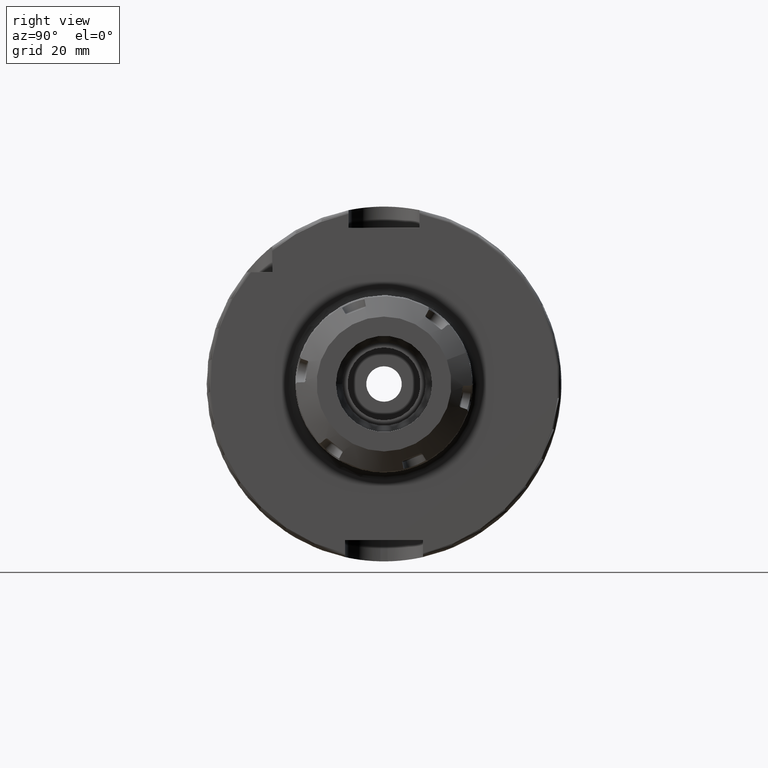
[diagram: clean part render]
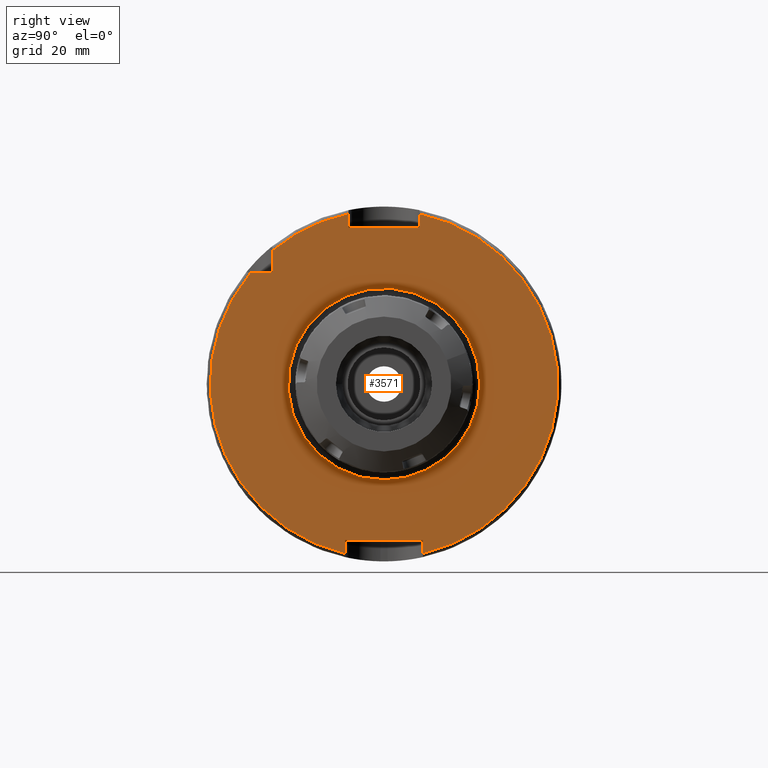
[diagram: same view with one face highlighted and labeled with its STEP entity id]
A machine part, right view. The second image highlights one B-rep face of the part: STEP entity #3571.
In plain terms, the highlighted planar face has unit normal (1, 0, 0).
Its self-contained STEP definition (entity closure, byte-faithful):
#207=FACE_BOUND('',#554,.T.);
#227=PLANE('',#3854);
#347=FACE_OUTER_BOUND('',#553,.T.);
#553=EDGE_LOOP('',(#2386,#2387,#2388,#2389,#2390,#2391,#2392,#2393,#2394,
#2395,#2396));
#554=EDGE_LOOP('',(#2397,#2398));
#778=LINE('',#5426,#969);
#779=LINE('',#5430,#970);
#780=LINE('',#5432,#971);
#781=LINE('',#5434,#972);
#782=LINE('',#5438,#973);
#783=LINE('',#5440,#974);
#784=LINE('',#5442,#975);
#785=LINE('',#5445,#976);
#969=VECTOR('',#4333,10.);
#970=VECTOR('',#4336,10.);
#971=VECTOR('',#4337,10.);
#972=VECTOR('',#4338,10.);
#973=VECTOR('',#4341,10.);
#974=VECTOR('',#4342,10.);
#975=VECTOR('',#4343,10.);
#976=VECTOR('',#4346,10.);
#1164=CIRCLE('',#3846,27.);
#1165=CIRCLE('',#3847,27.);
#1171=CIRCLE('',#3855,49.);
#1172=CIRCLE('',#3856,49.);
#1173=CIRCLE('',#3857,49.);
#1407=VERTEX_POINT('',#5407);
#1408=VERTEX_POINT('',#5409);
#1413=VERTEX_POINT('',#5424);
#1414=VERTEX_POINT('',#5425);
#1415=VERTEX_POINT('',#5427);
#1416=VERTEX_POINT('',#5429);
#1417=VERTEX_POINT('',#5431);
#1418=VERTEX_POINT('',#5433);
#1419=VERTEX_POINT('',#5435);
#1420=VERTEX_POINT('',#5437);
#1421=VERTEX_POINT('',#5439);
#1422=VERTEX_POINT('',#5441);
#1423=VERTEX_POINT('',#5443);
#1795=EDGE_CURVE('',#1407,#1408,#1164,.T.);
#1796=EDGE_CURVE('',#1408,#1407,#1165,.T.);
#1803=EDGE_CURVE('',#1413,#1414,#778,.T.);
#1804=EDGE_CURVE('',#1414,#1415,#1171,.T.);
#1805=EDGE_CURVE('',#1415,#1416,#779,.T.);
#1806=EDGE_CURVE('',#1416,#1417,#780,.T.);
#1807=EDGE_CURVE('',#1417,#1418,#781,.T.);
#1808=EDGE_CURVE('',#1418,#1419,#1172,.T.);
#1809=EDGE_CURVE('',#1419,#1420,#782,.T.);
#1810=EDGE_CURVE('',#1420,#1421,#783,.T.);
#1811=EDGE_CURVE('',#1421,#1422,#784,.T.);
#1812=EDGE_CURVE('',#1422,#1423,#1173,.T.);
#1813=EDGE_CURVE('',#1423,#1413,#785,.T.);
#2386=ORIENTED_EDGE('',*,*,#1803,.T.);
#2387=ORIENTED_EDGE('',*,*,#1804,.T.);
#2388=ORIENTED_EDGE('',*,*,#1805,.T.);
#2389=ORIENTED_EDGE('',*,*,#1806,.T.);
#2390=ORIENTED_EDGE('',*,*,#1807,.T.);
#2391=ORIENTED_EDGE('',*,*,#1808,.T.);
#2392=ORIENTED_EDGE('',*,*,#1809,.T.);
#2393=ORIENTED_EDGE('',*,*,#1810,.T.);
#2394=ORIENTED_EDGE('',*,*,#1811,.T.);
#2395=ORIENTED_EDGE('',*,*,#1812,.T.);
#2396=ORIENTED_EDGE('',*,*,#1813,.T.);
#2397=ORIENTED_EDGE('',*,*,#1796,.F.);
#2398=ORIENTED_EDGE('',*,*,#1795,.F.);
#3571=ADVANCED_FACE('',(#347,#207),#227,.T.);
#3846=AXIS2_PLACEMENT_3D('',#5410,#4314,#4315);
#3847=AXIS2_PLACEMENT_3D('',#5411,#4316,#4317);
#3854=AXIS2_PLACEMENT_3D('',#5423,#4331,#4332);
#3855=AXIS2_PLACEMENT_3D('',#5428,#4334,#4335);
#3856=AXIS2_PLACEMENT_3D('',#5436,#4339,#4340);
#3857=AXIS2_PLACEMENT_3D('',#5444,#4344,#4345);
#4314=DIRECTION('center_axis',(1.,0.,0.));
#4315=DIRECTION('ref_axis',(0.,-1.,-1.22464679914735E-16));
#4316=DIRECTION('center_axis',(1.,0.,0.));
#4317=DIRECTION('ref_axis',(0.,-1.,-1.22464679914735E-16));
#4331=DIRECTION('center_axis',(1.,0.,0.));
#4332=DIRECTION('ref_axis',(0.,0.,-1.));
#4333=DIRECTION('',(0.,-1.,0.));
#4334=DIRECTION('center_axis',(1.,0.,0.));
#4335=DIRECTION('ref_axis',(0.,0.,-1.));
#4336=DIRECTION('',(0.,0.,1.));
#4337=DIRECTION('',(0.,1.,0.));
#4338=DIRECTION('',(0.,0.,-1.));
#4339=DIRECTION('center_axis',(1.,0.,0.));
#4340=DIRECTION('ref_axis',(0.,0.,-1.));
#4341=DIRECTION('',(0.,0.,-1.));
#4342=DIRECTION('',(0.,-1.,0.));
#4343=DIRECTION('',(0.,0.,1.));
#4344=DIRECTION('center_axis',(1.,0.,0.));
#4345=DIRECTION('ref_axis',(0.,0.,-1.));
#4346=DIRECTION('',(0.,0.,-1.));
#5407=CARTESIAN_POINT('',(29.,-3.30654635769785E-15,-27.));
#5409=CARTESIAN_POINT('',(29.,27.,6.61309271539571E-15));
#5410=CARTESIAN_POINT('Origin',(29.,0.,0.));
#5411=CARTESIAN_POINT('Origin',(29.,0.,0.));
#5423=CARTESIAN_POINT('Origin',(29.,0.,0.));
#5424=CARTESIAN_POINT('',(29.,-31.5,31.5));
#5425=CARTESIAN_POINT('',(29.,-37.5333185316726,31.5));
#5426=CARTESIAN_POINT('',(29.,-18.25,31.5));
#5427=CARTESIAN_POINT('',(29.,-11.,-47.7493455452533));
#5428=CARTESIAN_POINT('Origin',(29.,0.,0.));
#5429=CARTESIAN_POINT('',(29.,-11.,-44.));
#5430=CARTESIAN_POINT('',(29.,-11.,-22.));
#5431=CARTESIAN_POINT('',(29.,11.,-44.));
#5432=CARTESIAN_POINT('',(29.,-5.55111512312578E-16,-44.));
#5433=CARTESIAN_POINT('',(29.,11.,-47.7493455452533));
#5434=CARTESIAN_POINT('',(29.,11.,-22.));
#5435=CARTESIAN_POINT('',(29.,10.,47.9687398208458));
#5436=CARTESIAN_POINT('Origin',(29.,0.,0.));
#5437=CARTESIAN_POINT('',(29.,10.,44.));
#5438=CARTESIAN_POINT('',(29.,10.,22.));
#5439=CARTESIAN_POINT('',(29.,-10.,44.));
#5440=CARTESIAN_POINT('',(29.,0.,44.));
#5441=CARTESIAN_POINT('',(29.,-10.,47.9687398208458));
#5442=CARTESIAN_POINT('',(29.,-10.,22.));
#5443=CARTESIAN_POINT('',(29.,-31.5,37.5333185316726));
#5444=CARTESIAN_POINT('Origin',(29.,0.,0.));
#5445=CARTESIAN_POINT('',(29.,-31.5,15.75));